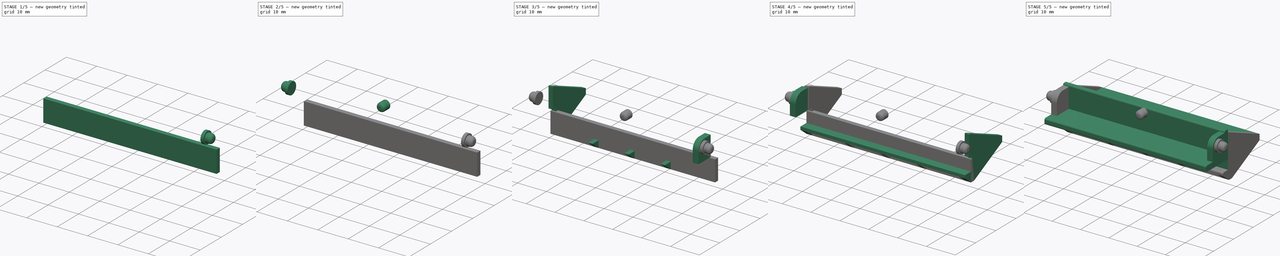
[diagram: build sequence overview — one tinted view per stage of 5, left to right]
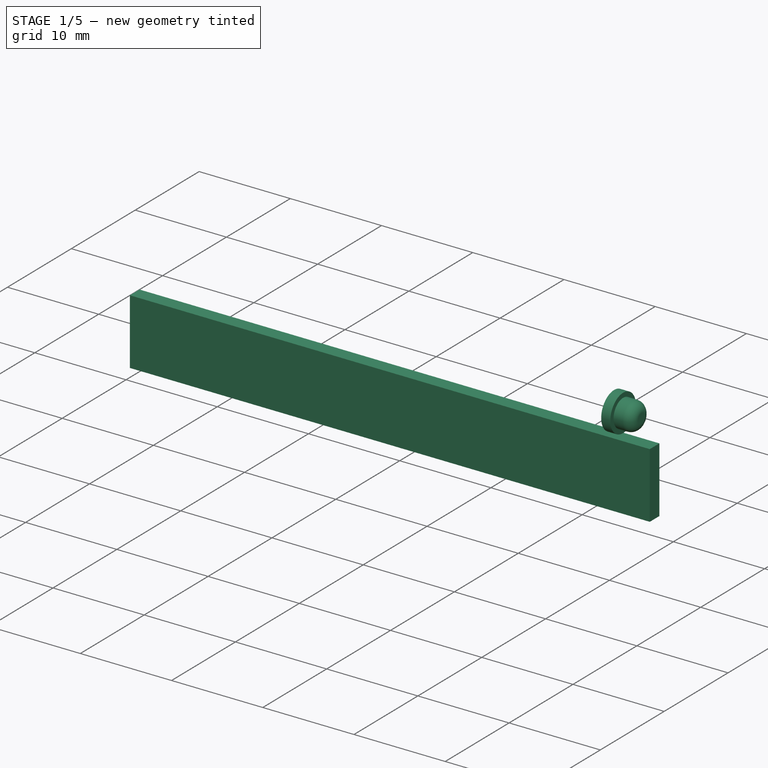
[diagram: stage 1 of 5 — iso view after this stage's code; geometry added in this stage tinted green]
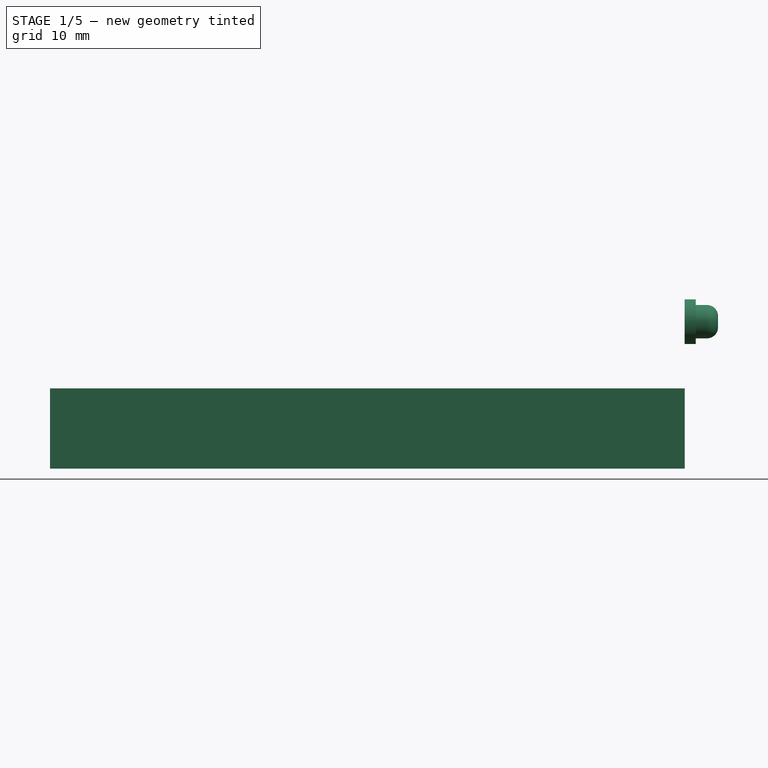
[diagram: stage 1 of 5 — front view after this stage's code; geometry added in this stage tinted green]
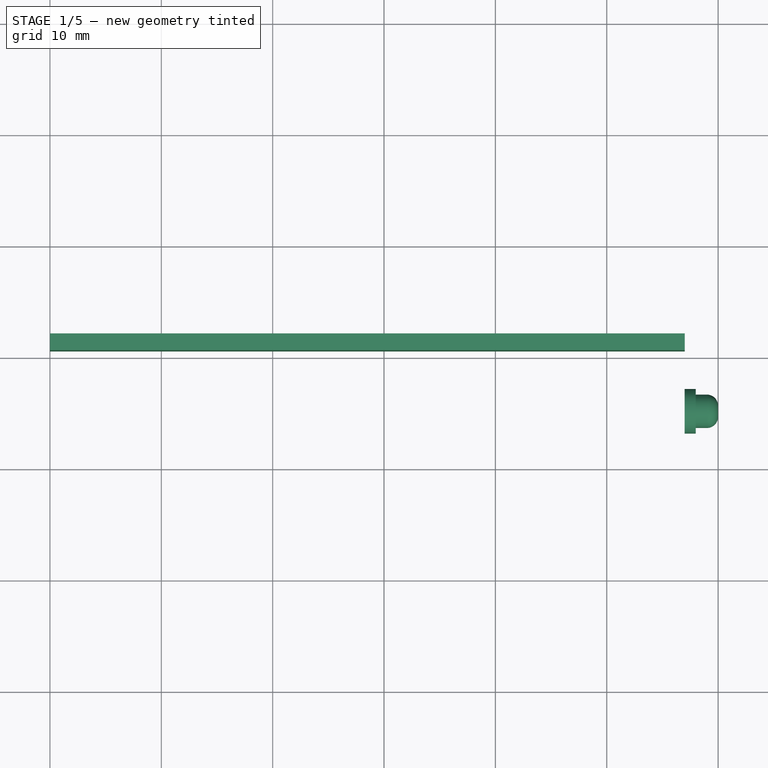
[diagram: stage 1 of 5 — top view after this stage's code; geometry added in this stage tinted green]
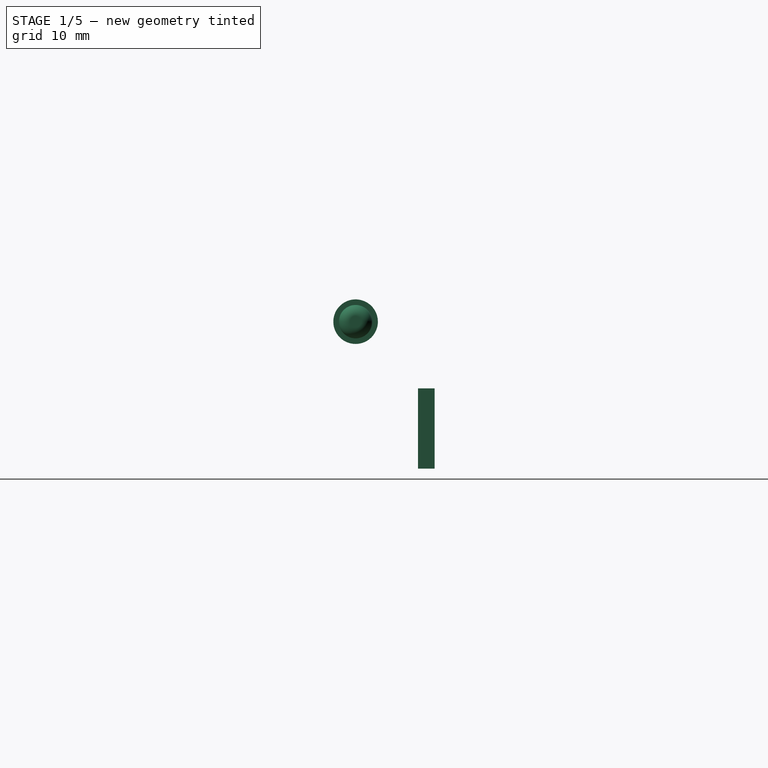
[diagram: stage 1 of 5 — right view after this stage's code; geometry added in this stage tinted green]
FCSTD DOCUMENT  (FreeCAD 0.17R13541 (Git))
Label: pieza_aspirador_v1
License: All rights reserved
LicenseURL: http://en.wikipedia.org/wiki/All_rights_reserved
objects: Part::Box×7, Part::Fillet×6, Sketcher::SketchObject×5, Part::Extrusion×5, Part::Cylinder×5, Part::MultiFuse×3, Part::FeaturePython×1
note: 32 computed .brp shape members not serialized (recipe doc carries the construction recipe); baked Part::Feature solids carry a one-line shape summary decoded from their .brp

FEATURE [Part::Cylinder] Cylinder002  label="Cilindro002"
  Angle = 360
  AttacherType = Attacher::AttachEngine3D
  Height = 2
  Placement = pos=(0,0,1) rot=(0,0,1;0rad)
  Radius = 1.5
  expr: Radius = 3 / 2
FEATURE [Part::Cylinder] Cylinder003  label="Cilindro003"
  Angle = 360
  AttacherType = Attacher::AttachEngine3D
  Height = 1
  Radius = 2
  expr: Radius = 4 / 2
FEATURE [Part::MultiFuse] Fusion001  label="pivote derecho"
  Placement = pos=(56.9941,5,3.99412) rot=(0,1,0;1.5708rad)
  Refine = true
  Shapes = -> [Cylinder002,Cylinder003]
FEATURE [Part::Fillet] Fillet013
  Base = -> Fusion001
  Edges = 1 edges r=1: [Edge5]
  Placement = pos=(0,0,2) rot=(0,0,1;0rad)
FEATURE [Part::Box] Box012  label="Cubo012"
  AttacherType = Attacher::AttachEngine3D
  Height = 1.5
  Length = 57
  Placement = pos=(0,12.1,-7.2) rot=(1,0,0;1.5708rad)
  Width = 7.2
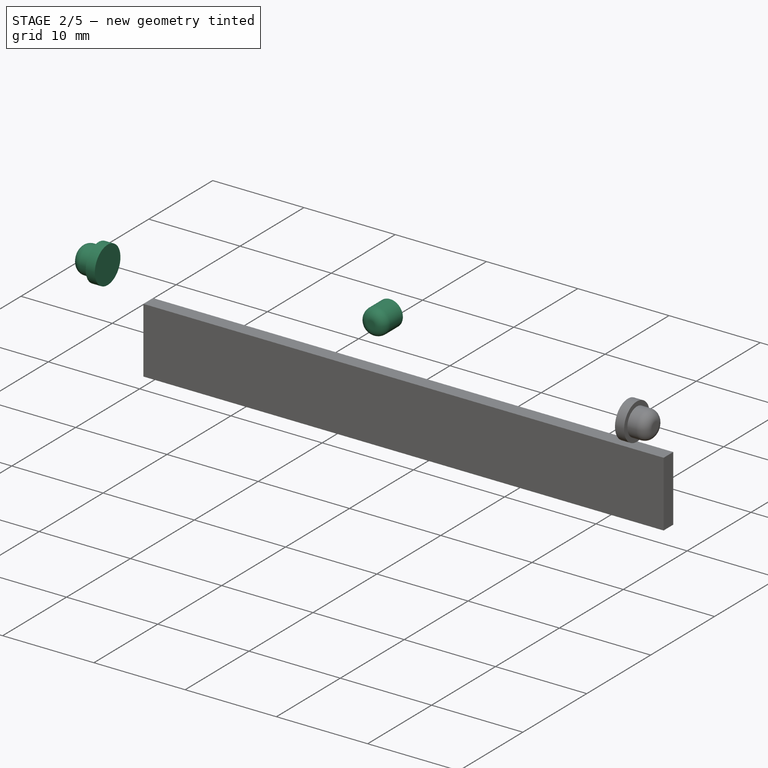
[diagram: stage 2 of 5 — iso view after this stage's code; geometry added in this stage tinted green]
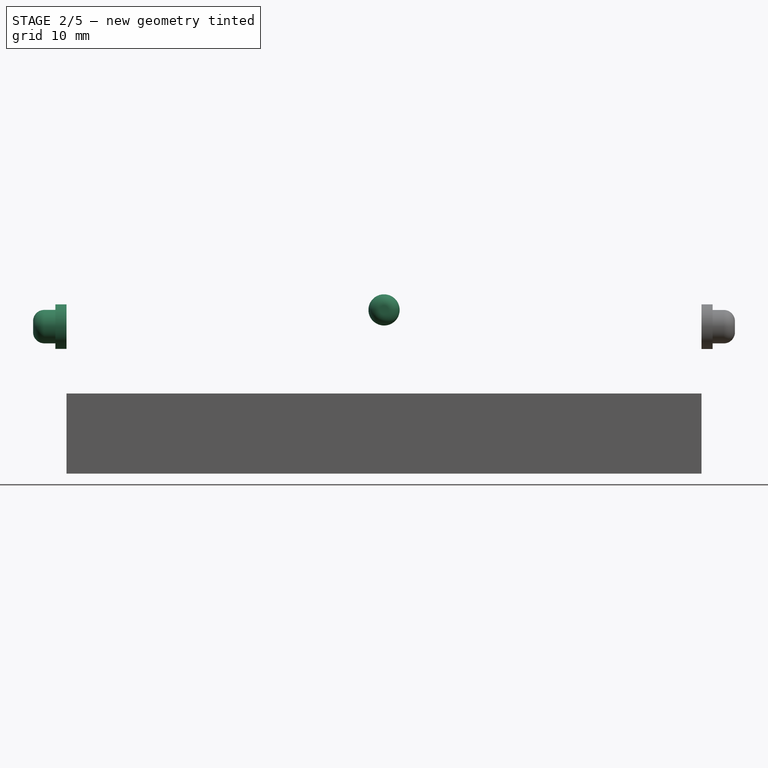
[diagram: stage 2 of 5 — front view after this stage's code; geometry added in this stage tinted green]
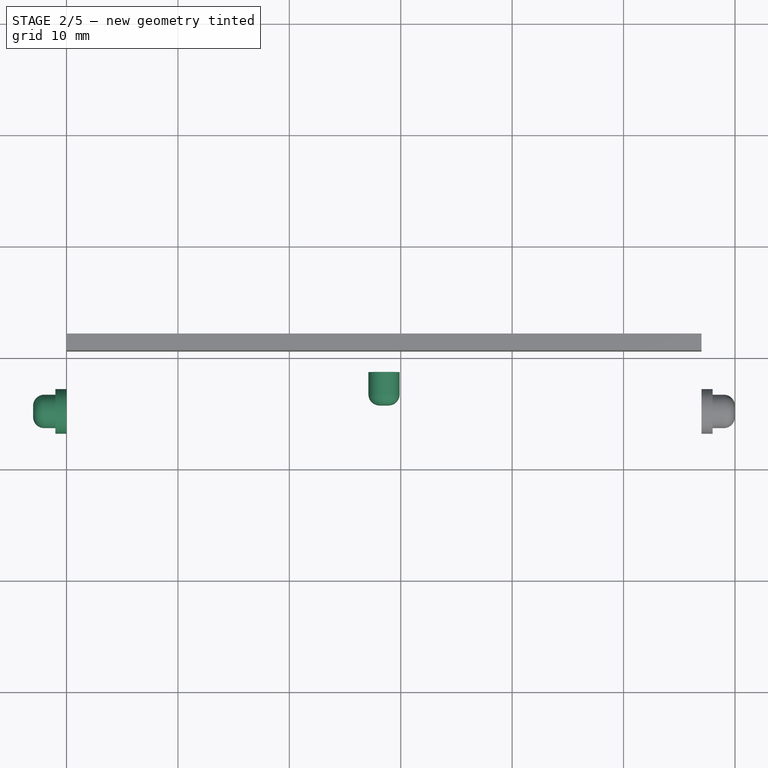
[diagram: stage 2 of 5 — top view after this stage's code; geometry added in this stage tinted green]
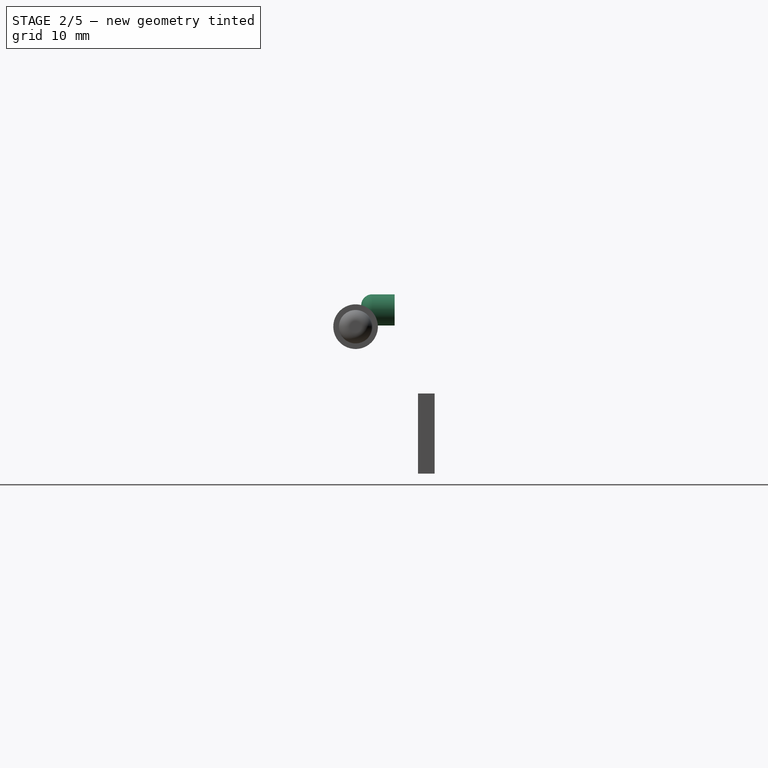
[diagram: stage 2 of 5 — right view after this stage's code; geometry added in this stage tinted green]
FEATURE [Part::Cylinder] Cylinder  label="Cilindro"
  Angle = 360
  AttacherType = Attacher::AttachEngine3D
  Height = 2
  Placement = pos=(0,0,1) rot=(0,0,1;0rad)
  Radius = 1.5
  expr: Radius = 3 / 2
FEATURE [Part::Cylinder] Cylinder001  label="Cilindro001"
  Angle = 360
  AttacherType = Attacher::AttachEngine3D
  Height = 1
  Radius = 2
  expr: Radius = 4 / 2
FEATURE [Part::MultiFuse] Fusion  label="pivote izquierdo"
  Placement = pos=(0,5,4) rot=(0,-1,0;1.5708rad)
  Refine = true
  Shapes = -> [Cylinder,Cylinder001]
FEATURE [Part::Cylinder] Cylinder004  label="Cilindro004"
  Angle = 360
  AttacherType = Attacher::AttachEngine3D
  Height = 3
  Placement = pos=(28.5,8.5,7.5) rot=(1,0,0;1.5708rad)
  Radius = 1.4
  expr: Radius = 2.7999999999999998 / 2
FEATURE [Part::Fillet] Fillet011  label="pivote"
  Base = -> Cylinder004
  Edges = 1 edges r=1: [Edge1]
FEATURE [Part::Fillet] Fillet012
  Base = -> Fusion
  Edges = 1 edges r=1: [Edge5]
  Placement = pos=(0,0,2) rot=(0,0,1;0rad)
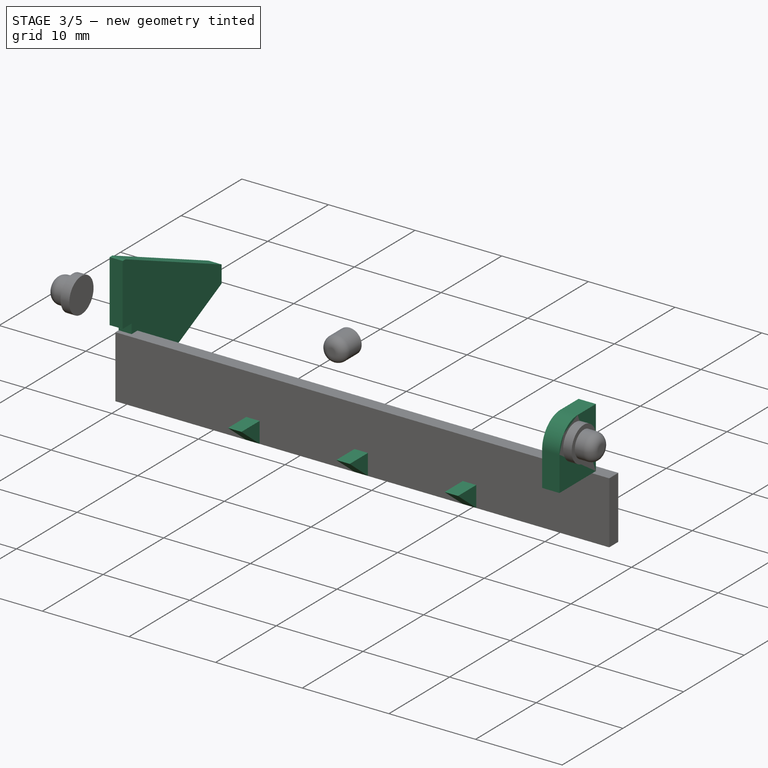
[diagram: stage 3 of 5 — iso view after this stage's code; geometry added in this stage tinted green]
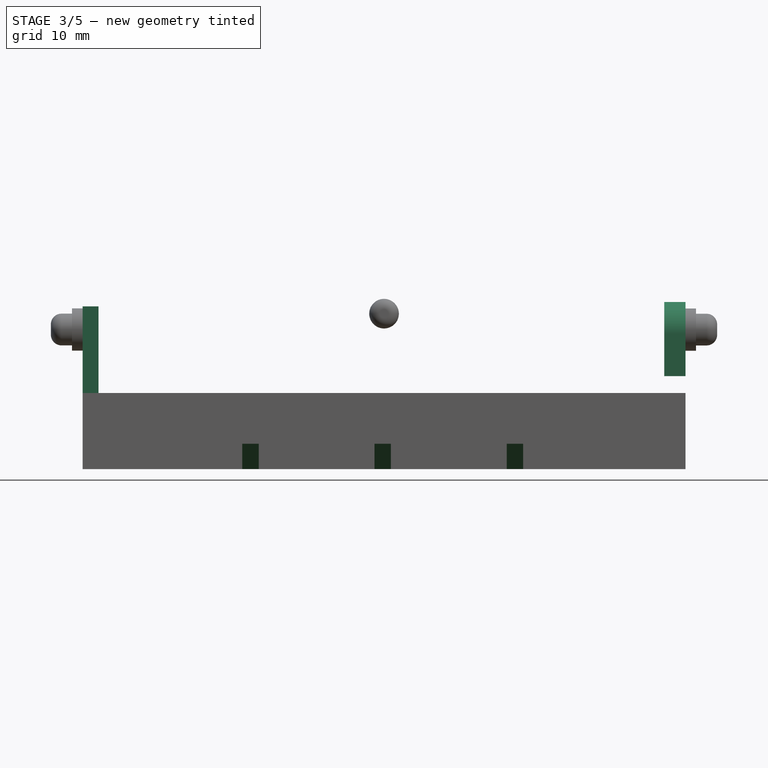
[diagram: stage 3 of 5 — front view after this stage's code; geometry added in this stage tinted green]
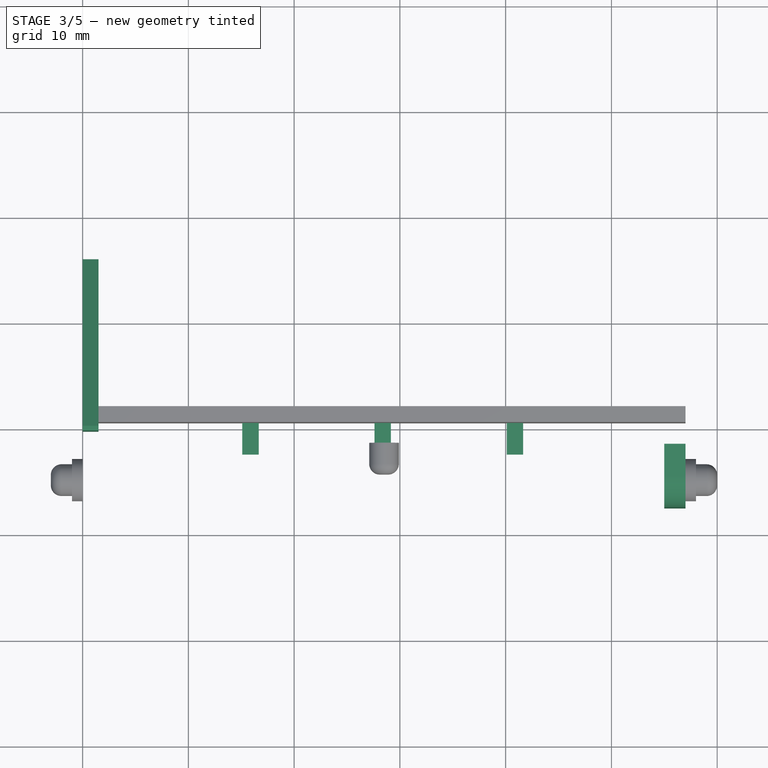
[diagram: stage 3 of 5 — top view after this stage's code; geometry added in this stage tinted green]
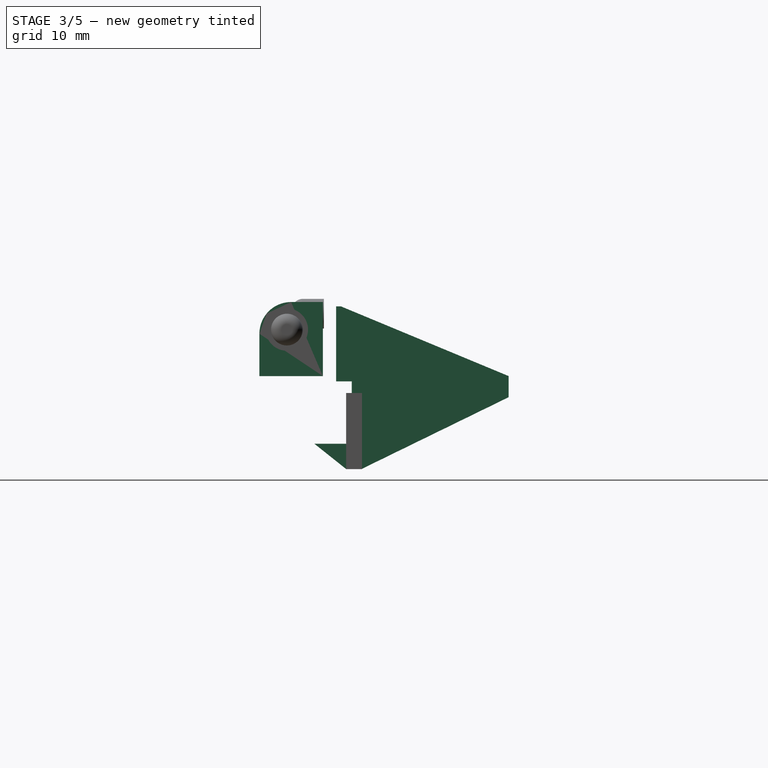
[diagram: stage 3 of 5 — right view after this stage's code; geometry added in this stage tinted green]
FEATURE [Part::Box] Box006  label="Cubo006"
  AttacherType = Attacher::AttachEngine3D
  Height = 2
  Length = 7
  Placement = pos=(0,2.4,8.6) rot=(0,1,0;1.5708rad)
  Width = 6
FEATURE [Part::Fillet] Fillet002
  Base = -> Box006
  Edges = 1 edges r=3: [Edge1]
  Placement = pos=(55,0,0) rot=(0,0,1;0rad)
FEATURE [Sketcher::SketchObject] Sketch002
  MapMode = 4
  Placement = pos=(55,0,0) rot=(0.57735,0.57735,0.57735;2.0944rad)
  Support = -> [Fillet002]
  sketch-geometry (10):
    g0: LineSegment StartX=12.1 StartY=-7.2 StartZ=0 EndX=26 EndY=-0.4 EndZ=0
    g1: LineSegment StartX=26 StartY=1.6 StartZ=0 EndX=10.1 EndY=8.2 EndZ=0
    g2: LineSegment StartX=9.59971 StartY=8.2 StartZ=0 EndX=9.59971 EndY=1.1 EndZ=0
    g3: LineSegment StartX=9.59971 StartY=1.1 StartZ=0 EndX=11.1635 EndY=1.1 EndZ=0
    g4: LineSegment StartX=11.1635 StartY=1.1 StartZ=0 EndX=11.1635 EndY=-7.2 EndZ=0
    g5: GeomPoint X=26 Y=1.6 Z=0
    g6: GeomPoint X=26 Y=-0.4 Z=0
    g7: LineSegment StartX=26 StartY=1.6 StartZ=0 EndX=26 EndY=-0.4 EndZ=0
    g8: LineSegment StartX=11.1635 StartY=-7.2 StartZ=0 EndX=12.1 EndY=-7.2 EndZ=0
    g9: LineSegment StartX=10.1 StartY=8.2 StartZ=0 EndX=9.59971 EndY=8.2 EndZ=0
  constraints (18):
    c: Vertical(g2)
    c: Coincident(g2,g3)
    c: Horizontal(g3)
    c: Coincident(g3,g4)
    c: Vertical(g4)
    c: PointOnObject(g5,g1)
    c: PointOnObject(g6,g0)
    c: Coincident(g7,g5)
    c: Coincident(g7,g6)
    c: Vertical(g7)
    c: PointOnObject(g1,g7)
    c: PointOnObject(g0,g7)
    c: Horizontal(g8)
    c: Coincident(g4,g8)
    c: Coincident(g8,g0)
    c: Horizontal(g9)
    c: Coincident(g2,g9)
    c: Coincident(g1,g9)
FEATURE [Sketcher::SketchObject] Sketch004
  MapMode = 4
  Placement = pos=(55,0,0) rot=(0.57735,0.57735,0.57735;2.0944rad)
  sketch-geometry (3):
    g0: LineSegment StartX=7.6 StartY=-4.8 StartZ=0 EndX=10.6 EndY=-7.18833 EndZ=0
    g1: LineSegment StartX=10.6 StartY=-7.18833 StartZ=0 EndX=10.6 EndY=-4.8 EndZ=0
    g2: LineSegment StartX=10.6 StartY=-4.8 StartZ=0 EndX=7.6 EndY=-4.8 EndZ=0
  constraints (5):
    c: Coincident(g0,g1)
    c: Vertical(g1)
    c: Coincident(g1,g2)
    c: Coincident(g2,g0)
    c: Horizontal(g2)
FEATURE [Part::Extrusion] Extrude004  label="triangulos"
  Base = -> Sketch004
  Dir = (1,0,0)
  DirMode = 2
  FaceMakerClass = Part::FaceMakerBullseye
  LengthFwd = 1.55
  LengthRev = 0
  Solid = true
  Symmetric = false
FEATURE [Part::FeaturePython] Array  # Draft array (typed FeaturePython)
  Angle = 360
  ArrayType = 0
  Axis = (0,0,1)
  Base = -> Extrude004
  Center = (0,0,0)
  Fuse = false
  IntervalAxis = (0,0,0)
  IntervalX = (12.5,0,0)
  IntervalY = (0,1,0)
  IntervalZ = (0,0,0)
  NumberPolar = 1
  NumberX = 3
  NumberY = 1
  NumberZ = 0
  Placement = pos=(-39.9,0,0) rot=(0,0,1;0rad)
FEATURE [Sketcher::SketchObject] Sketch009
  MapMode = 4
  Placement = pos=(55,0,0) rot=(0.57735,0.57735,0.57735;2.0944rad)
  sketch-geometry (10):
    g0: LineSegment StartX=12.0788 StartY=-7.17937 StartZ=0 EndX=25.9647 EndY=-0.4 EndZ=0
    g1: LineSegment StartX=25.9647 StartY=1.6 StartZ=0 EndX=10.1013 EndY=8.19311 EndZ=0
    g2: LineSegment StartX=9.66052 StartY=8.19311 StartZ=0 EndX=9.66052 EndY=1.1 EndZ=0
    g3: LineSegment StartX=9.66052 StartY=1.1 StartZ=0 EndX=11.1318 EndY=1.1 EndZ=0
    g4: LineSegment StartX=11.1318 StartY=1.1 StartZ=0 EndX=11.1318 EndY=-7.17937 EndZ=0
    g5: GeomPoint X=25.9647 Y=1.6 Z=0
    g6: GeomPoint X=25.9647 Y=-0.4 Z=0
    g7: LineSegment StartX=25.9647 StartY=1.6 StartZ=0 EndX=25.9647 EndY=-0.4 EndZ=0
    g8: LineSegment StartX=11.1318 StartY=-7.17937 StartZ=0 EndX=12.0788 EndY=-7.17937 EndZ=0
    g9: LineSegment StartX=10.1013 StartY=8.19311 StartZ=0 EndX=9.66052 EndY=8.19311 EndZ=0
  constraints (18):
    c: Vertical(g2)
    c: Coincident(g2,g3)
    c: Horizontal(g3)
    c: Coincident(g3,g4)
    c: Vertical(g4)
    c: PointOnObject(g5,g1)
    c: PointOnObject(g6,g0)
    c: Coincident(g7,g5)
    c: Coincident(g7,g6)
    c: Vertical(g7)
    c: PointOnObject(g1,g7)
    c: PointOnObject(g0,g7)
    c: Horizontal(g8)
    c: Coincident(g4,g8)
    c: Coincident(g8,g0)
    c: Horizontal(g9)
    c: Coincident(g2,g9)
    c: Coincident(g1,g9)
FEATURE [Part::Extrusion] Extrude004004  label="triangulo lado 2 grande"
  Base = -> Sketch009
  Dir = (1,0,0)
  DirMode = 2
  FaceMakerClass = Part::FaceMakerBullseye
  LengthFwd = 1.5
  LengthRev = 0
  Placement = pos=(-55,0,0) rot=(0,0,1;0rad)
  Solid = true
  Symmetric = false
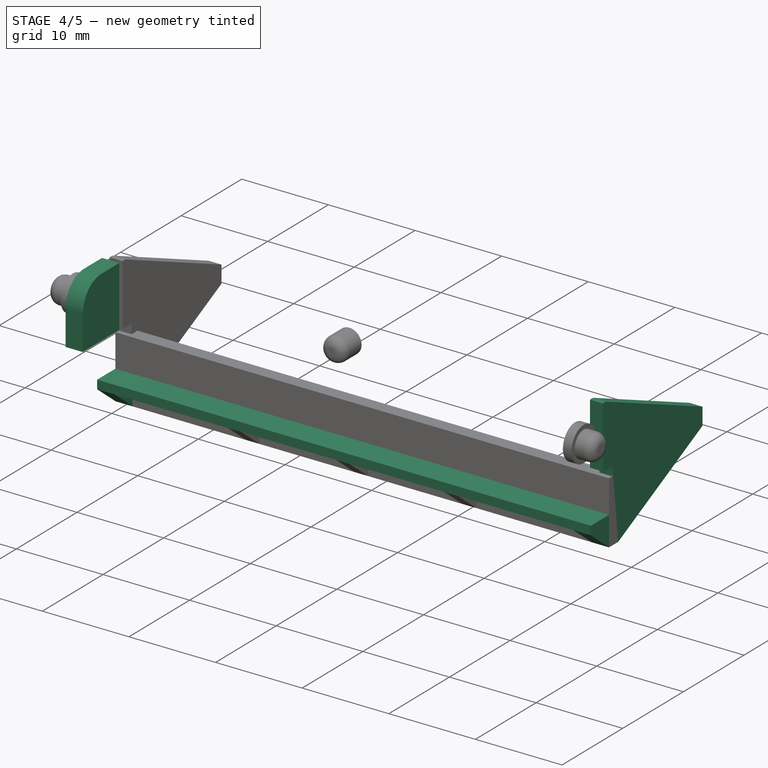
[diagram: stage 4 of 5 — iso view after this stage's code; geometry added in this stage tinted green]
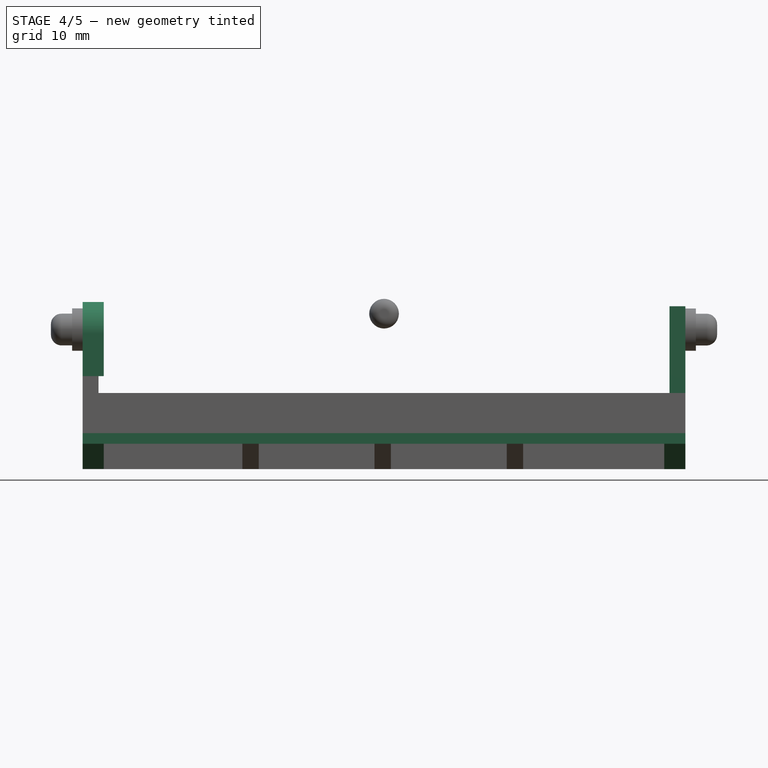
[diagram: stage 4 of 5 — front view after this stage's code; geometry added in this stage tinted green]
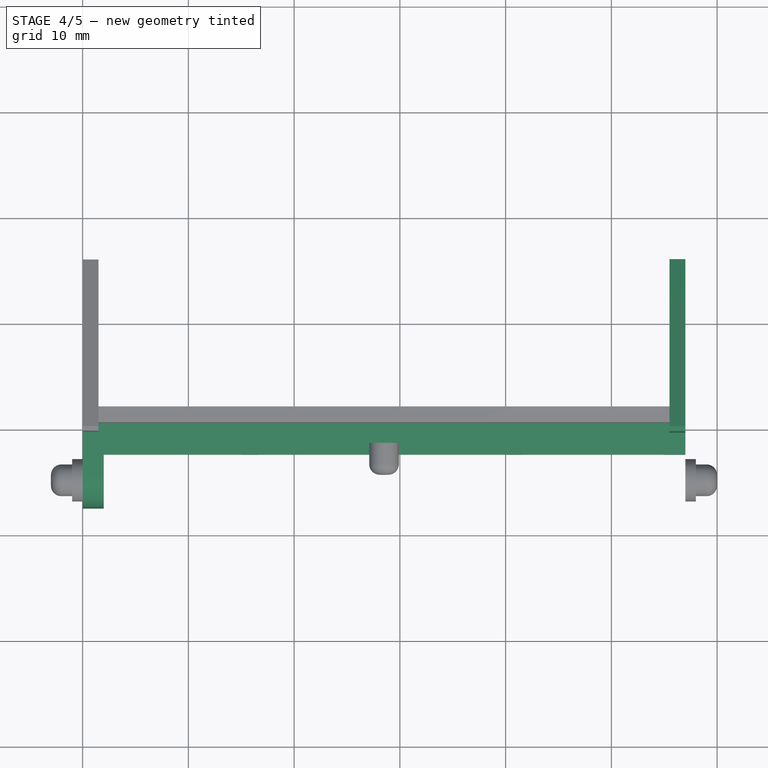
[diagram: stage 4 of 5 — top view after this stage's code; geometry added in this stage tinted green]
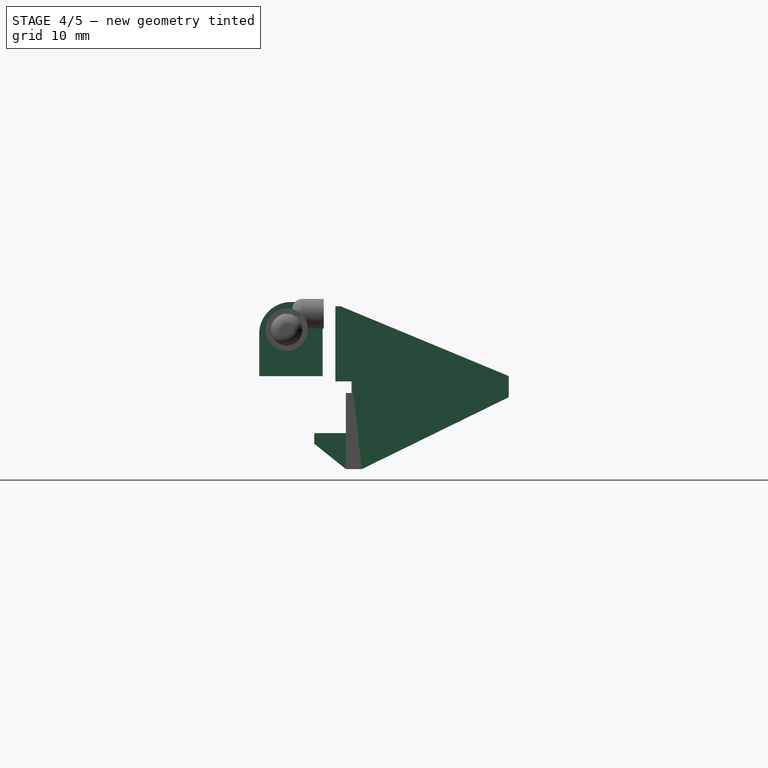
[diagram: stage 4 of 5 — right view after this stage's code; geometry added in this stage tinted green]
FEATURE [Part::Box] Box003  label="Cubo003"
  AttacherType = Attacher::AttachEngine3D
  Height = 1
  Length = 57
  Placement = pos=(0,7.60128,-4.80038) rot=(0,0,1;0rad)
  Width = 3
FEATURE [Part::Box] Box004  label="Cubo004"
  AttacherType = Attacher::AttachEngine3D
  Height = 2
  Length = 7
  Placement = pos=(0,2.4,8.6) rot=(0,1,0;1.5708rad)
  Width = 6
FEATURE [Part::Fillet] Fillet
  Base = -> Box004
  Edges = 1 edges r=3: [Edge1]
FEATURE [Sketcher::SketchObject] Sketch
  MapMode = 4
  Placement = pos=(55,0,0) rot=(0.57735,0.57735,0.57735;2.0944rad)
  sketch-geometry (3):
    g0: LineSegment StartX=7.6 StartY=-4.8 StartZ=0 EndX=10.6 EndY=-7.2 EndZ=0
    g1: LineSegment StartX=10.6 StartY=-7.2 StartZ=0 EndX=10.6 EndY=-4.8 EndZ=0
    g2: LineSegment StartX=10.6 StartY=-4.8 StartZ=0 EndX=7.6 EndY=-4.8 EndZ=0
  constraints (5):
    c: Coincident(g0,g1)
    c: Vertical(g1)
    c: Coincident(g1,g2)
    c: Coincident(g2,g0)
    c: Horizontal(g2)
FEATURE [Part::Extrusion] Extrude  label="triangulo lado 1"
  Base = -> Sketch
  Dir = (1,0,0)
  DirMode = 2
  FaceMakerClass = Part::FaceMakerBullseye
  LengthFwd = 2
  LengthRev = 0
  Solid = true
  Symmetric = false
FEATURE [Sketcher::SketchObject] Sketch001
  MapMode = 4
  Placement = pos=(55,0,0) rot=(0.57735,0.57735,0.57735;2.0944rad)
  Support = -> [Fillet002]
  sketch-geometry (3):
    g0: LineSegment StartX=7.6 StartY=-4.8 StartZ=0 EndX=10.6104 EndY=-7.18959 EndZ=0
    g1: LineSegment StartX=10.6104 StartY=-7.18959 StartZ=0 EndX=10.6104 EndY=-4.8 EndZ=0
    g2: LineSegment StartX=10.6104 StartY=-4.8 StartZ=0 EndX=7.6 EndY=-4.8 EndZ=0
  constraints (5):
    c: Coincident(g0,g1)
    c: Vertical(g1)
    c: Coincident(g1,g2)
    c: Coincident(g2,g0)
    c: Horizontal(g2)
FEATURE [Part::Extrusion] Extrude001  label="triangulo lado 2"
  Base = -> Sketch001
  Dir = (1,0,0)
  DirMode = 2
  FaceMakerClass = Part::FaceMakerBullseye
  LengthFwd = 2
  LengthRev = 0
  Placement = pos=(-55,0,0) rot=(0,0,1;0rad)
  Solid = true
  Symmetric = false
FEATURE [Part::Extrusion] Extrude002  label="triangulo lado 1 grande"
  Base = -> Sketch002
  Dir = (1,0,0)
  DirMode = 2
  FaceMakerClass = Part::FaceMakerBullseye
  LengthFwd = 1.5
  LengthRev = 0
  Placement = pos=(0.5,0,0) rot=(0,0,1;0rad)
  Solid = true
  Symmetric = false
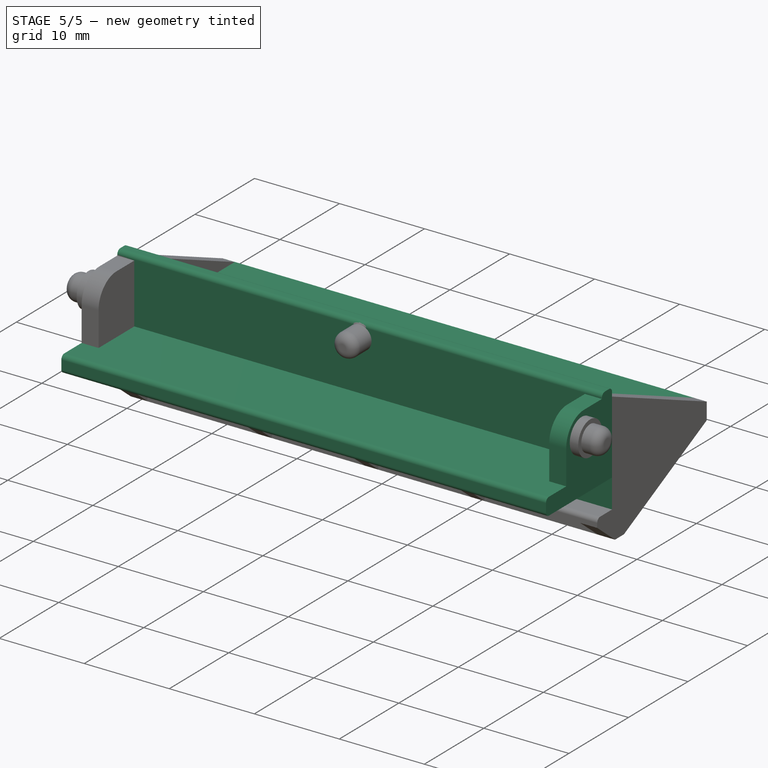
[diagram: stage 5 of 5 — iso view after this stage's code; geometry added in this stage tinted green]
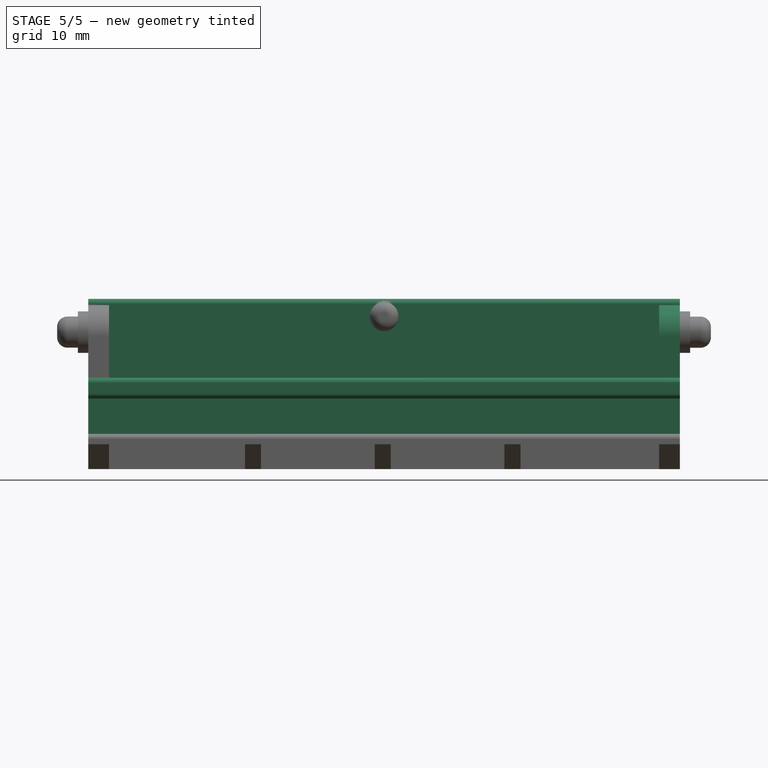
[diagram: stage 5 of 5 — front view after this stage's code; geometry added in this stage tinted green]
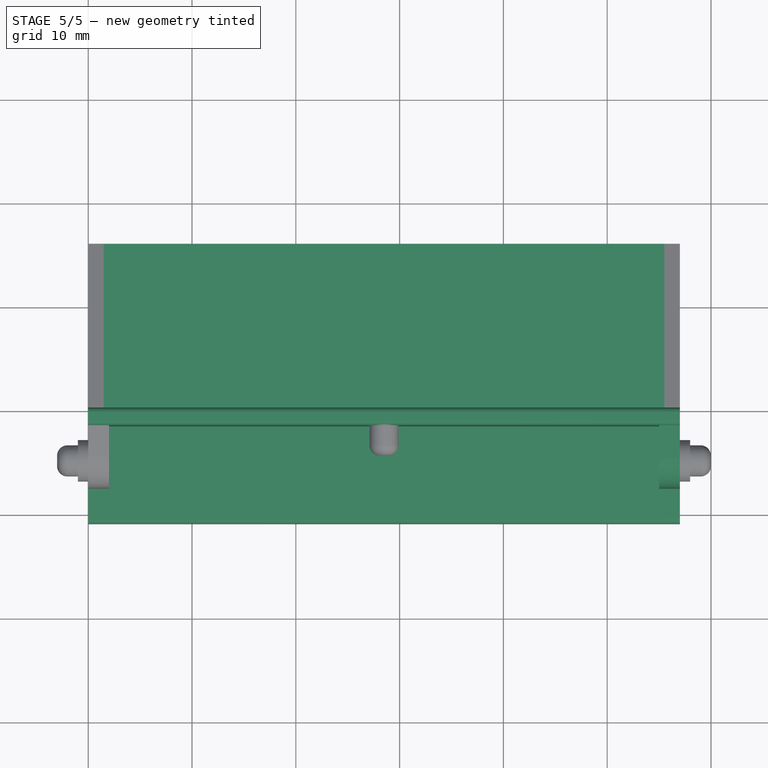
[diagram: stage 5 of 5 — top view after this stage's code; geometry added in this stage tinted green]
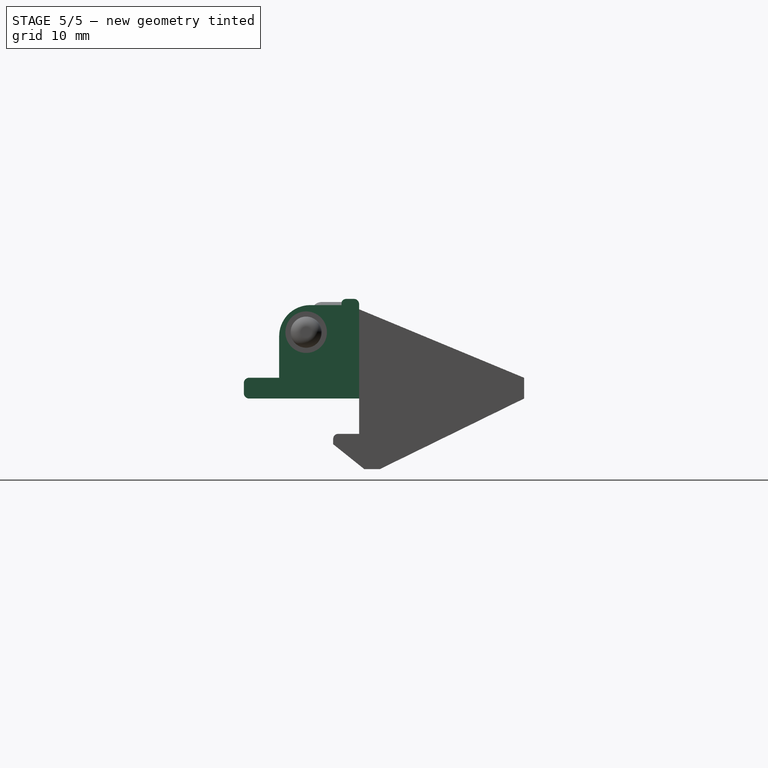
[diagram: stage 5 of 5 — right view after this stage's code; geometry added in this stage tinted green]
FEATURE [Part::Box] Box  label="Cubo"
  AttacherType = Attacher::AttachEngine3D
  Height = 1.7
  Length = 57
  Placement = pos=(0,10.1,1.6) rot=(1,0,0;1.5708rad)
  Width = 7.6
FEATURE [Part::Box] Box001  label="Cubo001"
  AttacherType = Attacher::AttachEngine3D
  Height = 2
  Length = 57
  Placement = pos=(0,-1,-0.4) rot=(0,0,1;0rad)
  Width = 27
FEATURE [Part::Box] Box002  label="Cubo002"
  AttacherType = Attacher::AttachEngine3D
  Height = 2
  Length = 57
  Placement = pos=(0,12.1,-4.2) rot=(1,0,0;1.5708rad)
  Width = 4.2
FEATURE [Part::MultiFuse] Fusion002
  Refine = true
  Shapes = -> [Box,Fillet011,Array,Fillet012,Fillet013,Box001,Box002,Fillet,Box003,Extrude,Fillet002,Extrude001,Extrude002,Extrude004004,Box012]
FEATURE [Part::Fillet] Fillet014
  Base = -> Fusion002
  Edges = 5 edges r=0.5: [Edge68,Edge73,Edge76,Edge79,Edge87]
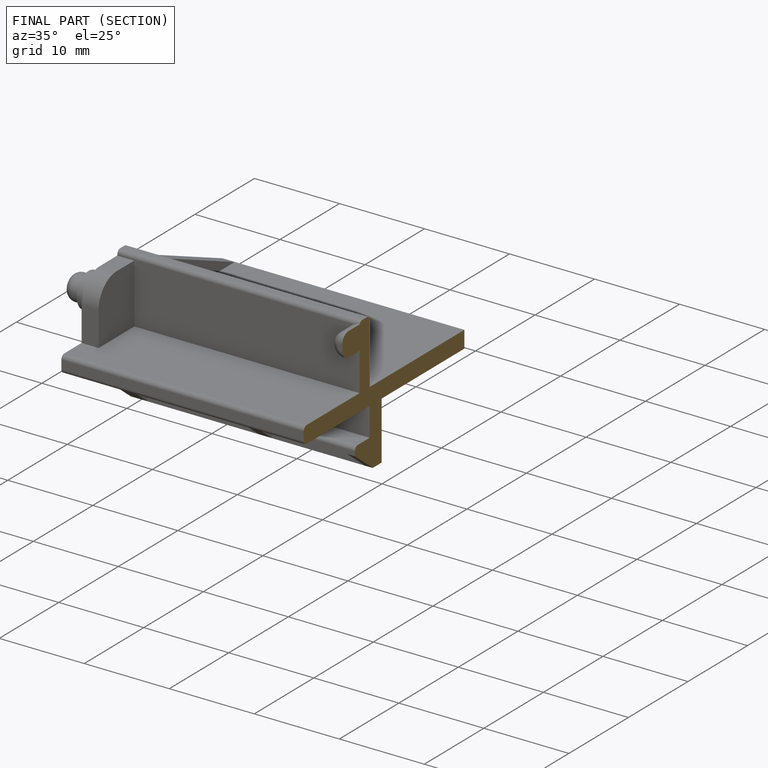
[diagram: finished part — half-section view (interior)]
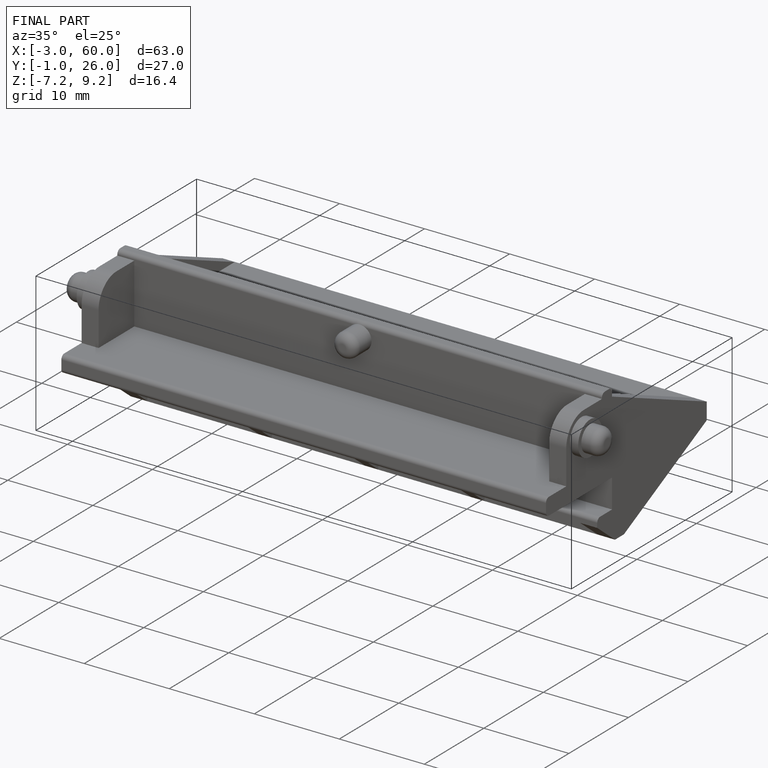
[diagram: finished part — iso view with bounding-box wireframe]
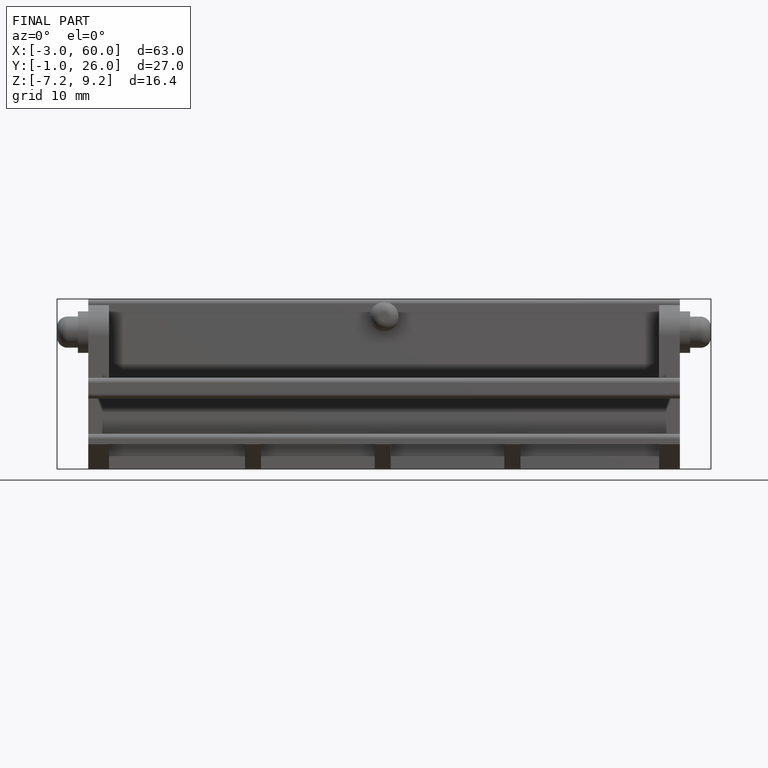
[diagram: finished part — front view with bounding-box wireframe]
